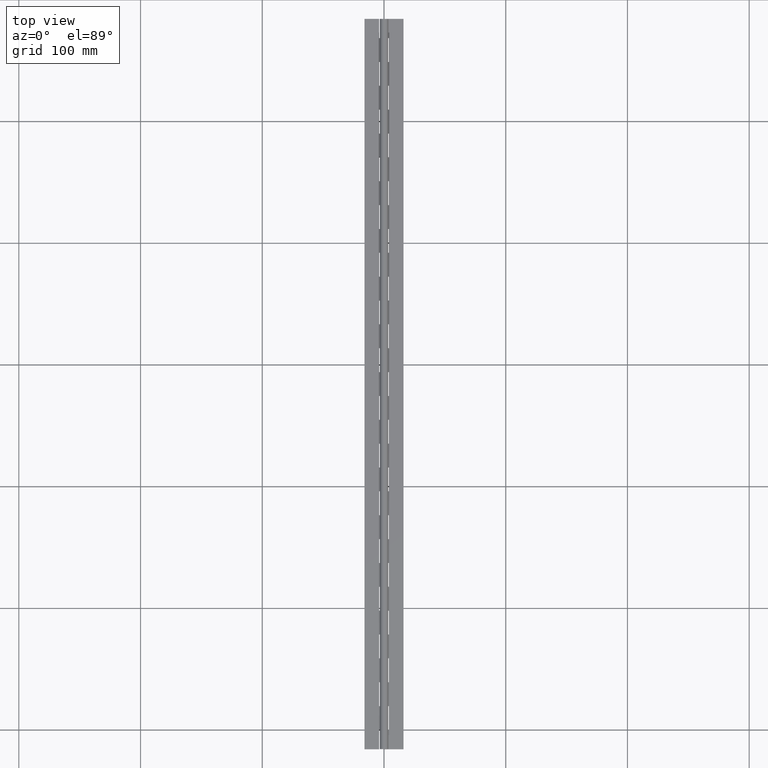
[diagram: clean part render]
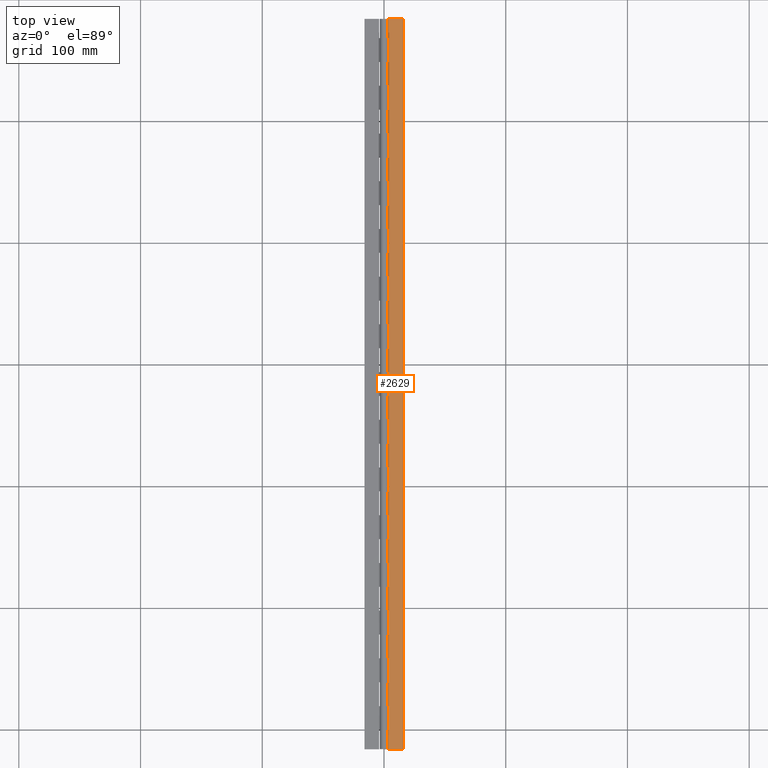
[diagram: same view with one face highlighted and labeled with its STEP entity id]
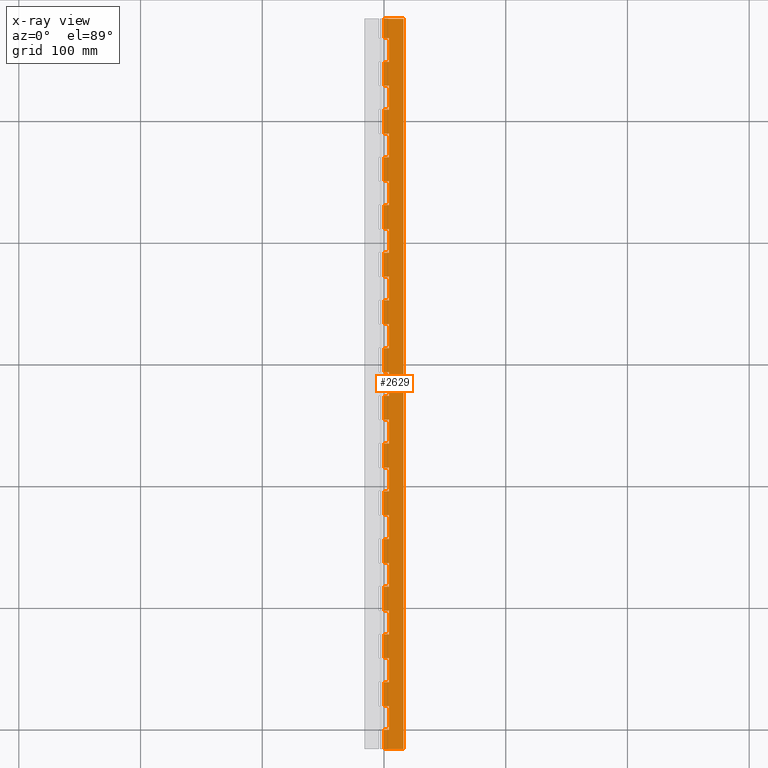
[diagram: x-ray of the same camera — body ghosted, the highlighted face saturated]
A machine part, top view. The second image highlights one B-rep face of the part: STEP entity #2629.
The next image is the same camera in x-ray: the body ghosted, the highlighted face saturated — about 0% of this face is hidden behind the body in this view.
In plain terms, the highlighted planar face has unit normal (-0, 0, -1).
Its self-contained STEP definition (entity closure, byte-faithful):
#19 = CARTESIAN_POINT ( 'NONE',  ( 0.0000000000000000000, 176.4000000000000100, -1.750002187502756900 ) ) ;
#25 = LINE ( 'NONE', #3932, #5538 ) ;
#30 = EDGE_CURVE ( 'NONE', #4172, #5078, #4350, .T. ) ;
#39 = EDGE_CURVE ( 'NONE', #4036, #899, #1742, .T. ) ;
#43 = LINE ( 'NONE', #5431, #5384 ) ;
#46 = VERTEX_POINT ( 'NONE', #3459 ) ;
#60 = VECTOR ( 'NONE', #3988, 1000.000000000000000 ) ;
#67 = CARTESIAN_POINT ( 'NONE',  ( 2.143125705451388300E-016, 58.79999999999996200, -1.750002187502756900 ) ) ;
#75 = VECTOR ( 'NONE', #1797, 1000.000000000000000 ) ;
#90 = EDGE_CURVE ( 'NONE', #940, #1159, #4514, .T. ) ;
#98 = LINE ( 'NONE', #1812, #3023 ) ;
#116 = EDGE_CURVE ( 'NONE', #4818, #308, #6615, .T. ) ;
#120 = LINE ( 'NONE', #2090, #5127 ) ;
#123 = ORIENTED_EDGE ( 'NONE', *, *, #6144, .T. ) ;
#189 = VECTOR ( 'NONE', #5840, 1000.000000000000000 ) ;
#203 = EDGE_CURVE ( 'NONE', #597, #2743, #1084, .T. ) ;
#204 = VECTOR ( 'NONE', #1274, 1000.000000000000000 ) ;
#231 = ORIENTED_EDGE ( 'NONE', *, *, #3465, .T. ) ;
#235 = CARTESIAN_POINT ( 'NONE',  ( 2.143125705451388300E-016, 274.4000000000000300, -1.750002187502756900 ) ) ;
#239 = PLANE ( 'NONE',  #5309 ) ;
#260 = DIRECTION ( 'NONE',  ( 1.000000000000000000, 0.0000000000000000000, -2.710505431213761100E-017 ) ) ;
#265 = CARTESIAN_POINT ( 'NONE',  ( 4.000000000000027500, 568.3999999999999800, -1.750002187502757200 ) ) ;
#306 = FACE_OUTER_BOUND ( 'NONE', #3059, .T. ) ;
#308 = VERTEX_POINT ( 'NONE', #2360 ) ;
#311 = CARTESIAN_POINT ( 'NONE',  ( 0.0000000000000000000, 254.8000000000000400, -1.750002187502756900 ) ) ;
#318 = CARTESIAN_POINT ( 'NONE',  ( 3.999999999999996400, 235.2000000000000200, -1.750002187502756900 ) ) ;
#324 = LINE ( 'NONE', #3268, #4290 ) ;
#342 = VECTOR ( 'NONE', #3825, 1000.000000000000000 ) ;
#343 = CARTESIAN_POINT ( 'NONE',  ( 0.0000000000000000000, 98.00000000000002800, -1.750002187502756900 ) ) ;
#364 = LINE ( 'NONE', #5406, #2971 ) ;
#375 = VECTOR ( 'NONE', #6560, 1000.000000000000000 ) ;
#393 = LINE ( 'NONE', #3815, #4202 ) ;
#404 = ORIENTED_EDGE ( 'NONE', *, *, #3473, .T. ) ;
#420 = CARTESIAN_POINT ( 'NONE',  ( 4.000000000000000000, 19.60000000000000100, -1.750002187502757200 ) ) ;
#422 = EDGE_CURVE ( 'NONE', #5719, #1348, #3457, .T. ) ;
#432 = VERTEX_POINT ( 'NONE', #2693 ) ;
#436 = LINE ( 'NONE', #6601, #1643 ) ;
#446 = CARTESIAN_POINT ( 'NONE',  ( 4.000000000000048800, 568.3999999999999800, -1.750002187502757200 ) ) ;
#488 = CARTESIAN_POINT ( 'NONE',  ( 2.143125705451388300E-016, 450.8000000000000700, -1.750002187502756900 ) ) ;
#495 = CARTESIAN_POINT ( 'NONE',  ( 0.0000000000000000000, 78.40000000000002000, -1.750002187502756900 ) ) ;
#496 = LINE ( 'NONE', #3349, #4636 ) ;
#502 = EDGE_CURVE ( 'NONE', #1567, #5906, #1570, .T. ) ;
#507 = CARTESIAN_POINT ( 'NONE',  ( 4.000000000000000000, 450.8000000000000700, -1.750002187502757200 ) ) ;
#580 = EDGE_CURVE ( 'NONE', #6350, #4994, #5226, .T. ) ;
#597 = VERTEX_POINT ( 'NONE', #2813 ) ;
#603 = LINE ( 'NONE', #3555, #1814 ) ;
#622 = VERTEX_POINT ( 'NONE', #2886 ) ;
#628 = VERTEX_POINT ( 'NONE', #4911 ) ;
#674 = LINE ( 'NONE', #3217, #6047 ) ;
#688 = VECTOR ( 'NONE', #4941, 1000.000000000000000 ) ;
#731 = ORIENTED_EDGE ( 'NONE', *, *, #116, .T. ) ;
#732 = DIRECTION ( 'NONE',  ( -2.710505431213761100E-017, 0.0000000000000000000, -1.000000000000000000 ) ) ;
#750 = EDGE_CURVE ( 'NONE', #5258, #4845, #2723, .T. ) ;
#764 = VERTEX_POINT ( 'NONE', #5344 ) ;
#766 = DIRECTION ( 'NONE',  ( -1.770125995894701000E-016, -1.000000000000000000, 4.797936125805254900E-033 ) ) ;
#797 = CARTESIAN_POINT ( 'NONE',  ( 16.00000000000000000, -15.80000000000000100, -1.750002187502757400 ) ) ;
#811 = EDGE_CURVE ( 'NONE', #4966, #2587, #6361, .T. ) ;
#826 = VECTOR ( 'NONE', #1616, 1000.000000000000000 ) ;
#844 = DIRECTION ( 'NONE',  ( 1.000000000000000000, 0.0000000000000000000, -2.710505431213761100E-017 ) ) ;
#853 = VECTOR ( 'NONE', #4692, 1000.000000000000000 ) ;
#899 = VERTEX_POINT ( 'NONE', #5252 ) ;
#902 = LINE ( 'NONE', #6325, #6603 ) ;
#903 = EDGE_CURVE ( 'NONE', #46, #6345, #5721, .T. ) ;
#934 = CARTESIAN_POINT ( 'NONE',  ( 0.0000000000000000000, 392.0000000000000600, -1.750002187502756900 ) ) ;
#940 = VERTEX_POINT ( 'NONE', #2115 ) ;
#942 = CARTESIAN_POINT ( 'NONE',  ( 2.143125705451388300E-016, 196.0000000000000600, -1.750002187502756900 ) ) ;
#957 = VECTOR ( 'NONE', #5422, 1000.000000000000000 ) ;
#978 = CARTESIAN_POINT ( 'NONE',  ( 2.143125705451388300E-016, 156.8000000000000400, -1.750002187502756900 ) ) ;
#990 = LINE ( 'NONE', #6336, #826 ) ;
#1005 = EDGE_CURVE ( 'NONE', #4075, #3665, #902, .T. ) ;
#1016 = LINE ( 'NONE', #6233, #853 ) ;
#1022 = VERTEX_POINT ( 'NONE', #1545 ) ;
#1043 = DIRECTION ( 'NONE',  ( -0.0000000000000000000, -1.000000000000000000, -0.0000000000000000000 ) ) ;
#1049 = CARTESIAN_POINT ( 'NONE',  ( 0.0000000000000000000, 156.8000000000000400, -1.750002187502756900 ) ) ;
#1062 = CARTESIAN_POINT ( 'NONE',  ( 0.0000000000000000000, 215.6000000000000200, -1.750002187502756900 ) ) ;
#1069 = LINE ( 'NONE', #311, #4888 ) ;
#1084 = LINE ( 'NONE', #6469, #3378 ) ;
#1094 = EDGE_CURVE ( 'NONE', #6435, #1581, #4575, .T. ) ;
#1140 = ORIENTED_EDGE ( 'NONE', *, *, #1618, .T. ) ;
#1142 = VECTOR ( 'NONE', #4582, 1000.000000000000000 ) ;
#1143 = LINE ( 'NONE', #2408, #3917 ) ;
#1151 = VERTEX_POINT ( 'NONE', #3095 ) ;
#1159 = VERTEX_POINT ( 'NONE', #2516 ) ;
#1171 = ORIENTED_EDGE ( 'NONE', *, *, #3502, .T. ) ;
#1218 = EDGE_CURVE ( 'NONE', #6477, #4261, #1143, .T. ) ;
#1224 = EDGE_CURVE ( 'NONE', #432, #6303, #120, .T. ) ;
#1236 = VECTOR ( 'NONE', #1791, 1000.000000000000000 ) ;
#1267 = CARTESIAN_POINT ( 'NONE',  ( 2.143134577426118000E-016, 584.2000000000000500, -1.750002187502757400 ) ) ;
#1274 = DIRECTION ( 'NONE',  ( 1.000000000000000000, 0.0000000000000000000, -2.710505431213761100E-017 ) ) ;
#1285 = CARTESIAN_POINT ( 'NONE',  ( 4.000000000000076400, 568.3999999999999800, -1.750002187502757200 ) ) ;
#1321 = ORIENTED_EDGE ( 'NONE', *, *, #4923, .T. ) ;
#1332 = CARTESIAN_POINT ( 'NONE',  ( 2.143125705451388300E-016, 294.0000000000000600, -1.750002187502756900 ) ) ;
#1348 = VERTEX_POINT ( 'NONE', #4292 ) ;
#1367 = EDGE_CURVE ( 'NONE', #4037, #6477, #4324, .T. ) ;
#1385 = EDGE_CURVE ( 'NONE', #4994, #2400, #25, .T. ) ;
#1406 = LINE ( 'NONE', #3352, #2800 ) ;
#1408 = CARTESIAN_POINT ( 'NONE',  ( 2.143125705451388300E-016, 98.00000000000002800, -1.750002187502756900 ) ) ;
#1423 = LINE ( 'NONE', #1918, #60 ) ;
#1424 = DIRECTION ( 'NONE',  ( -1.000000000000000000, 0.0000000000000000000, 2.710505431213761100E-017 ) ) ;
#1428 = DIRECTION ( 'NONE',  ( 1.000000000000000000, 0.0000000000000000000, -2.710505431213761100E-017 ) ) ;
#1434 = LINE ( 'NONE', #4394, #75 ) ;
#1435 = VERTEX_POINT ( 'NONE', #318 ) ;
#1460 = LINE ( 'NONE', #265, #2853 ) ;
#1479 = EDGE_CURVE ( 'NONE', #1505, #6530, #3516, .T. ) ;
#1486 = ORIENTED_EDGE ( 'NONE', *, *, #203, .T. ) ;
#1489 = CARTESIAN_POINT ( 'NONE',  ( 2.143134577426118000E-016, 19.59999999999995200, -1.750002187502757400 ) ) ;
#1502 = ORIENTED_EDGE ( 'NONE', *, *, #2839, .T. ) ;
#1505 = VERTEX_POINT ( 'NONE', #1950 ) ;
#1532 = EDGE_CURVE ( 'NONE', #2258, #622, #6242, .T. ) ;
#1545 = CARTESIAN_POINT ( 'NONE',  ( 4.000000000000000000, 254.8000000000000400, -1.750002187502757200 ) ) ;
#1548 = CARTESIAN_POINT ( 'NONE',  ( 4.000000000000056000, 568.3999999999999800, -1.750002187502757200 ) ) ;
#1561 = CARTESIAN_POINT ( 'NONE',  ( 0.0000000000000000000, 352.8000000000000700, -1.750002187502756900 ) ) ;
#1567 = VERTEX_POINT ( 'NONE', #5110 ) ;
#1570 = LINE ( 'NONE', #446, #4174 ) ;
#1581 = VERTEX_POINT ( 'NONE', #978 ) ;
#1586 = LINE ( 'NONE', #5583, #2654 ) ;
#1591 = VERTEX_POINT ( 'NONE', #4130 ) ;
#1609 = LINE ( 'NONE', #4645, #5593 ) ;
#1610 = VERTEX_POINT ( 'NONE', #2046 ) ;
#1616 = DIRECTION ( 'NONE',  ( -1.000000000000000000, 0.0000000000000000000, 2.710505431213761100E-017 ) ) ;
#1618 = EDGE_CURVE ( 'NONE', #4845, #4364, #1609, .T. ) ;
#1643 = VECTOR ( 'NONE', #1428, 1000.000000000000000 ) ;
#1652 = EDGE_CURVE ( 'NONE', #1022, #1435, #2836, .T. ) ;
#1670 = ORIENTED_EDGE ( 'NONE', *, *, #5864, .T. ) ;
#1699 = EDGE_CURVE ( 'NONE', #2572, #4172, #2678, .T. ) ;
#1715 = ORIENTED_EDGE ( 'NONE', *, *, #3427, .T. ) ;
#1727 = CARTESIAN_POINT ( 'NONE',  ( 3.999999999999996400, 470.4000000000000300, -1.750002187502756900 ) ) ;
#1742 = LINE ( 'NONE', #3972, #375 ) ;
#1753 = CARTESIAN_POINT ( 'NONE',  ( 4.000000000000000000, 215.6000000000000500, -1.750002187502757200 ) ) ;
#1754 = VECTOR ( 'NONE', #4866, 1000.000000000000000 ) ;
#1776 = DIRECTION ( 'NONE',  ( -1.000000000000000000, 0.0000000000000000000, 2.710505431213761100E-017 ) ) ;
#1785 = CARTESIAN_POINT ( 'NONE',  ( 4.000000000000096800, 568.3999999999999800, -1.750002187502757200 ) ) ;
#1791 = DIRECTION ( 'NONE',  ( 1.000000000000000000, 0.0000000000000000000, -2.710505431213761100E-017 ) ) ;
#1797 = DIRECTION ( 'NONE',  ( -0.0000000000000000000, -1.000000000000000000, -0.0000000000000000000 ) ) ;
#1808 = ORIENTED_EDGE ( 'NONE', *, *, #3168, .T. ) ;
#1812 = CARTESIAN_POINT ( 'NONE',  ( 4.000000000000021300, 568.3999999999999800, -1.750002187502757200 ) ) ;
#1814 = VECTOR ( 'NONE', #1999, 1000.000000000000000 ) ;
#1825 = ORIENTED_EDGE ( 'NONE', *, *, #3446, .T. ) ;
#1827 = ORIENTED_EDGE ( 'NONE', *, *, #5545, .T. ) ;
#1834 = DIRECTION ( 'NONE',  ( -1.000000000000000000, 0.0000000000000000000, 2.710505431213761100E-017 ) ) ;
#1843 = EDGE_CURVE ( 'NONE', #1581, #5657, #324, .T. ) ;
#1857 = CARTESIAN_POINT ( 'NONE',  ( 2.143125705451388300E-016, 333.2000000000000500, -1.750002187502756900 ) ) ;
#1899 = LINE ( 'NONE', #4415, #2979 ) ;
#1903 = ORIENTED_EDGE ( 'NONE', *, *, #1367, .T. ) ;
#1918 = CARTESIAN_POINT ( 'NONE',  ( 2.143134577426118000E-016, 568.3999999999999800, -1.750002187502757400 ) ) ;
#1950 = CARTESIAN_POINT ( 'NONE',  ( 2.143125705451388300E-016, 117.6000000000000400, -1.750002187502756900 ) ) ;
#1957 = CARTESIAN_POINT ( 'NONE',  ( 3.999999999999996400, 39.20000000000000300, -1.750002187502756900 ) ) ;
#1959 = CARTESIAN_POINT ( 'NONE',  ( 2.143125705451388300E-016, 372.4000000000000900, -1.750002187502756900 ) ) ;
#1984 = ORIENTED_EDGE ( 'NONE', *, *, #2317, .T. ) ;
#1987 = CARTESIAN_POINT ( 'NONE',  ( 4.000000000000062200, 568.3999999999999800, -1.750002187502757200 ) ) ;
#1999 = DIRECTION ( 'NONE',  ( -0.0000000000000000000, -1.000000000000000000, -0.0000000000000000000 ) ) ;
#2004 = VECTOR ( 'NONE', #3623, 1000.000000000000000 ) ;
#2016 = LINE ( 'NONE', #1285, #5848 ) ;
#2032 = CARTESIAN_POINT ( 'NONE',  ( 2.143134577426118000E-016, 568.3999999999999800, -1.750002187502757400 ) ) ;
#2046 = CARTESIAN_POINT ( 'NONE',  ( 3.999999999999996400, 0.0000000000000000000, -1.750002187502756900 ) ) ;
#2060 = ORIENTED_EDGE ( 'NONE', *, *, #580, .T. ) ;
#2064 = CARTESIAN_POINT ( 'NONE',  ( 4.000000000000000000, 58.80000000000000400, -1.750002187502757200 ) ) ;
#2069 = VERTEX_POINT ( 'NONE', #3973 ) ;
#2090 = CARTESIAN_POINT ( 'NONE',  ( 4.000000000000014200, 568.3999999999999800, -1.750002187502757200 ) ) ;
#2112 = EDGE_CURVE ( 'NONE', #3511, #4676, #4450, .T. ) ;
#2115 = CARTESIAN_POINT ( 'NONE',  ( 4.000000000000000000, 568.3999999999999800, -1.750002187502756900 ) ) ;
#2150 = CARTESIAN_POINT ( 'NONE',  ( 2.143134577426118000E-016, -15.80000000000000100, -1.750002187502757400 ) ) ;
#2151 = EDGE_CURVE ( 'NONE', #6384, #1505, #3077, .T. ) ;
#2152 = ORIENTED_EDGE ( 'NONE', *, *, #5219, .T. ) ;
#2194 = CARTESIAN_POINT ( 'NONE',  ( 4.000000000000069300, 568.3999999999999800, -1.750002187502757200 ) ) ;
#2258 = VERTEX_POINT ( 'NONE', #5853 ) ;
#2310 = DIRECTION ( 'NONE',  ( -0.0000000000000000000, -1.000000000000000000, -0.0000000000000000000 ) ) ;
#2317 = EDGE_CURVE ( 'NONE', #2565, #46, #3320, .T. ) ;
#2318 = ORIENTED_EDGE ( 'NONE', *, *, #3305, .T. ) ;
#2324 = DIRECTION ( 'NONE',  ( 1.000000000000000000, 0.0000000000000000000, -2.710505431213761100E-017 ) ) ;
#2330 = CARTESIAN_POINT ( 'NONE',  ( 0.0000000000000000000, 509.6000000000000800, -1.750002187502756900 ) ) ;
#2336 = CARTESIAN_POINT ( 'NONE',  ( 0.0000000000000000000, 58.79999999999996200, -1.750002187502756900 ) ) ;
#2339 = ORIENTED_EDGE ( 'NONE', *, *, #3822, .F. ) ;
#2341 = DIRECTION ( 'NONE',  ( 1.000000000000000000, 0.0000000000000000000, -2.710505431213761100E-017 ) ) ;
#2360 = CARTESIAN_POINT ( 'NONE',  ( 2.143125705451388300E-016, 313.6000000000000200, -1.750002187502756900 ) ) ;
#2364 = ORIENTED_EDGE ( 'NONE', *, *, #1385, .T. ) ;
#2381 = CARTESIAN_POINT ( 'NONE',  ( 2.143125705451388300E-016, 509.6000000000000800, -1.750002187502756900 ) ) ;
#2400 = VERTEX_POINT ( 'NONE', #6482 ) ;
#2408 = CARTESIAN_POINT ( 'NONE',  ( 0.0000000000000000000, 411.6000000000000800, -1.750002187502756900 ) ) ;
#2409 = CARTESIAN_POINT ( 'NONE',  ( 0.0000000000000000000, 470.4000000000000300, -1.750002187502756900 ) ) ;
#2443 = DIRECTION ( 'NONE',  ( 1.000000000000000000, 0.0000000000000000000, -2.710505431213761100E-017 ) ) ;
#2468 = VECTOR ( 'NONE', #6488, 1000.000000000000000 ) ;
#2507 = CARTESIAN_POINT ( 'NONE',  ( 2.143125705451388300E-016, 176.4000000000000100, -1.750002187502756900 ) ) ;
#2516 = CARTESIAN_POINT ( 'NONE',  ( 3.999999999999996400, 548.8000000000000700, -1.750002187502756900 ) ) ;
#2546 = ORIENTED_EDGE ( 'NONE', *, *, #6363, .T. ) ;
#2565 = VERTEX_POINT ( 'NONE', #3690 ) ;
#2572 = VERTEX_POINT ( 'NONE', #4222 ) ;
#2574 = DIRECTION ( 'NONE',  ( -0.0000000000000000000, -1.000000000000000000, -0.0000000000000000000 ) ) ;
#2576 = LINE ( 'NONE', #5149, #5162 ) ;
#2587 = VERTEX_POINT ( 'NONE', #2150 ) ;
#2613 = CARTESIAN_POINT ( 'NONE',  ( 4.000000000000000000, 411.6000000000000800, -1.750002187502757200 ) ) ;
#2627 = DIRECTION ( 'NONE',  ( -0.0000000000000000000, -1.000000000000000000, -0.0000000000000000000 ) ) ;
#2629 = ADVANCED_FACE ( 'NONE', ( #306 ), #239, .F. ) ;
#2634 = EDGE_CURVE ( 'NONE', #628, #4974, #5156, .T. ) ;
#2654 = VECTOR ( 'NONE', #1424, 1000.000000000000000 ) ;
#2666 = VECTOR ( 'NONE', #3016, 1000.000000000000000 ) ;
#2678 = LINE ( 'NONE', #3647, #6641 ) ;
#2679 = ORIENTED_EDGE ( 'NONE', *, *, #1479, .T. ) ;
#2682 = EDGE_CURVE ( 'NONE', #3665, #3599, #3622, .T. ) ;
#2693 = CARTESIAN_POINT ( 'NONE',  ( 4.000000000000000000, 490.0000000000000600, -1.750002187502757200 ) ) ;
#2694 = EDGE_CURVE ( 'NONE', #622, #4129, #4841, .T. ) ;
#2723 = LINE ( 'NONE', #6528, #4090 ) ;
#2725 = ORIENTED_EDGE ( 'NONE', *, *, #4934, .T. ) ;
#2736 = VERTEX_POINT ( 'NONE', #1332 ) ;
#2739 = DIRECTION ( 'NONE',  ( -1.770125995894701000E-016, -1.000000000000000000, 4.797936125805254900E-033 ) ) ;
#2743 = VERTEX_POINT ( 'NONE', #1857 ) ;
#2781 = CARTESIAN_POINT ( 'NONE',  ( 2.143134577426118000E-016, 568.3999999999999800, -1.750002187502757400 ) ) ;
#2800 = VECTOR ( 'NONE', #2341, 1000.000000000000000 ) ;
#2813 = CARTESIAN_POINT ( 'NONE',  ( 2.143125705451388300E-016, 352.8000000000000700, -1.750002187502756900 ) ) ;
#2821 = EDGE_CURVE ( 'NONE', #3050, #3233, #1423, .T. ) ;
#2822 = CARTESIAN_POINT ( 'NONE',  ( 0.0000000000000000000, 568.3999999999999800, -1.750002187502756900 ) ) ;
#2836 = LINE ( 'NONE', #1548, #5427 ) ;
#2837 = ORIENTED_EDGE ( 'NONE', *, *, #2821, .T. ) ;
#2839 = EDGE_CURVE ( 'NONE', #1610, #4966, #1586, .T. ) ;
#2841 = LINE ( 'NONE', #343, #5430 ) ;
#2851 = CARTESIAN_POINT ( 'NONE',  ( 4.000000000000000000, 137.2000000000000200, -1.750002187502757200 ) ) ;
#2853 = VECTOR ( 'NONE', #3883, 1000.000000000000000 ) ;
#2859 = CARTESIAN_POINT ( 'NONE',  ( 3.999999999999996400, 117.6000000000000100, -1.750002187502756900 ) ) ;
#2880 = VERTEX_POINT ( 'NONE', #3029 ) ;
#2886 = CARTESIAN_POINT ( 'NONE',  ( 2.143125705451388300E-016, 392.0000000000000600, -1.750002187502756900 ) ) ;
#2900 = DIRECTION ( 'NONE',  ( 1.000000000000000000, 0.0000000000000000000, -2.710505431213761100E-017 ) ) ;
#2915 = ORIENTED_EDGE ( 'NONE', *, *, #811, .T. ) ;
#2919 = VECTOR ( 'NONE', #3543, 1000.000000000000000 ) ;
#2937 = LINE ( 'NONE', #3147, #3976 ) ;
#2944 = CARTESIAN_POINT ( 'NONE',  ( 2.143125705451388300E-016, 431.2000000000001000, -1.750002187502756900 ) ) ;
#2966 = VECTOR ( 'NONE', #4759, 1000.000000000000000 ) ;
#2971 = VECTOR ( 'NONE', #5938, 1000.000000000000000 ) ;
#2979 = VECTOR ( 'NONE', #2324, 1000.000000000000000 ) ;
#2980 = VECTOR ( 'NONE', #2443, 1000.000000000000000 ) ;
#2981 = CARTESIAN_POINT ( 'NONE',  ( 3.999999999999996400, 274.4000000000000300, -1.750002187502756900 ) ) ;
#3007 = EDGE_CURVE ( 'NONE', #4129, #2880, #1899, .T. ) ;
#3016 = DIRECTION ( 'NONE',  ( -1.770125995894701000E-016, -1.000000000000000000, 4.797936125805254900E-033 ) ) ;
#3023 = VECTOR ( 'NONE', #766, 1000.000000000000000 ) ;
#3029 = CARTESIAN_POINT ( 'NONE',  ( 4.000000000000000000, 372.4000000000000900, -1.750002187502757200 ) ) ;
#3030 = CARTESIAN_POINT ( 'NONE',  ( 0.0000000000000000000, 117.6000000000000400, -1.750002187502756900 ) ) ;
#3047 = ORIENTED_EDGE ( 'NONE', *, *, #39, .T. ) ;
#3050 = VERTEX_POINT ( 'NONE', #4971 ) ;
#3059 = EDGE_LOOP ( 'NONE', ( #2152, #404, #3995, #6377, #1715, #3047, #5416, #2060, #2364, #3960, #4765, #3551, #2837, #1825, #2725, #3662, #1903, #5760, #1321, #5833, #6624, #5413, #4705, #2318, #1486, #5536, #1171, #731, #1808, #231, #3611, #5290, #5505, #6302, #5079, #4379, #1984, #3434, #3827, #3468, #1140, #123, #5255, #4511, #3591, #3785, #1827, #4603, #2679, #1670, #4723, #3515, #3146, #5588, #2546, #4922, #4175, #3276, #4849, #1502, #2915, #2339, #6699, #3224 ) ) ;
#3077 = LINE ( 'NONE', #3030, #2919 ) ;
#3095 = CARTESIAN_POINT ( 'NONE',  ( 4.000000000000000000, 333.2000000000000500, -1.750002187502757200 ) ) ;
#3108 = CARTESIAN_POINT ( 'NONE',  ( 0.0000000000000000000, 431.2000000000001000, -1.750002187502756900 ) ) ;
#3112 = DIRECTION ( 'NONE',  ( -0.0000000000000000000, -1.000000000000000000, -0.0000000000000000000 ) ) ;
#3129 = VECTOR ( 'NONE', #4314, 1000.000000000000000 ) ;
#3133 = CARTESIAN_POINT ( 'NONE',  ( 2.143134577426118000E-016, 568.3999999999999800, -1.750002187502757400 ) ) ;
#3136 = LINE ( 'NONE', #5919, #5725 ) ;
#3146 = ORIENTED_EDGE ( 'NONE', *, *, #1005, .T. ) ;
#3147 = CARTESIAN_POINT ( 'NONE',  ( 2.143134577426118000E-016, 568.3999999999999800, -1.750002187502757400 ) ) ;
#3168 = EDGE_CURVE ( 'NONE', #308, #2736, #603, .T. ) ;
#3214 = LINE ( 'NONE', #3108, #4897 ) ;
#3217 = CARTESIAN_POINT ( 'NONE',  ( 4.000000000000007100, 568.3999999999999800, -1.750002187502757200 ) ) ;
#3224 = ORIENTED_EDGE ( 'NONE', *, *, #2634, .F. ) ;
#3233 = VERTEX_POINT ( 'NONE', #488 ) ;
#3249 = DIRECTION ( 'NONE',  ( -0.0000000000000000000, -1.000000000000000000, -0.0000000000000000000 ) ) ;
#3260 = CARTESIAN_POINT ( 'NONE',  ( 2.143134577426118000E-016, 568.3999999999999800, -1.750002187502757400 ) ) ;
#3268 = CARTESIAN_POINT ( 'NONE',  ( 2.143134577426118000E-016, 568.3999999999999800, -1.750002187502757400 ) ) ;
#3276 = ORIENTED_EDGE ( 'NONE', *, *, #30, .T. ) ;
#3286 = LINE ( 'NONE', #5340, #3129 ) ;
#3305 = EDGE_CURVE ( 'NONE', #5067, #597, #3938, .T. ) ;
#3320 = LINE ( 'NONE', #2781, #1754 ) ;
#3349 = CARTESIAN_POINT ( 'NONE',  ( 0.0000000000000000000, 235.2000000000000200, -1.750002187502756900 ) ) ;
#3352 = CARTESIAN_POINT ( 'NONE',  ( 0.0000000000000000000, 568.3999999999999800, -1.750002187502756900 ) ) ;
#3354 = CARTESIAN_POINT ( 'NONE',  ( 4.000000000000090600, 568.3999999999999800, -1.750002187502757200 ) ) ;
#3378 = VECTOR ( 'NONE', #2310, 1000.000000000000000 ) ;
#3391 = EDGE_CURVE ( 'NONE', #899, #6350, #674, .T. ) ;
#3425 = EDGE_CURVE ( 'NONE', #4806, #2572, #3136, .T. ) ;
#3427 = EDGE_CURVE ( 'NONE', #1591, #4036, #364, .T. ) ;
#3431 = CARTESIAN_POINT ( 'NONE',  ( 0.0000000000000000000, 313.6000000000000200, -1.750002187502756900 ) ) ;
#3434 = ORIENTED_EDGE ( 'NONE', *, *, #903, .T. ) ;
#3446 = EDGE_CURVE ( 'NONE', #3233, #3613, #4340, .T. ) ;
#3457 = LINE ( 'NONE', #3133, #6048 ) ;
#3459 = CARTESIAN_POINT ( 'NONE',  ( 2.143125705451388300E-016, 215.6000000000000200, -1.750002187502756900 ) ) ;
#3465 = EDGE_CURVE ( 'NONE', #2736, #1567, #43, .T. ) ;
#3468 = ORIENTED_EDGE ( 'NONE', *, *, #750, .T. ) ;
#3471 = VECTOR ( 'NONE', #260, 1000.000000000000000 ) ;
#3473 = EDGE_CURVE ( 'NONE', #5002, #940, #1406, .T. ) ;
#3502 = EDGE_CURVE ( 'NONE', #1151, #4818, #5225, .T. ) ;
#3511 = VERTEX_POINT ( 'NONE', #4944 ) ;
#3515 = ORIENTED_EDGE ( 'NONE', *, *, #6064, .T. ) ;
#3516 = LINE ( 'NONE', #2032, #6110 ) ;
#3543 = DIRECTION ( 'NONE',  ( -1.000000000000000000, 0.0000000000000000000, 2.710505431213761100E-017 ) ) ;
#3551 = ORIENTED_EDGE ( 'NONE', *, *, #4683, .T. ) ;
#3555 = CARTESIAN_POINT ( 'NONE',  ( 2.143134577426118000E-016, 568.3999999999999800, -1.750002187502757400 ) ) ;
#3577 = EDGE_CURVE ( 'NONE', #2069, #4037, #3214, .T. ) ;
#3591 = ORIENTED_EDGE ( 'NONE', *, *, #1843, .T. ) ;
#3599 = VERTEX_POINT ( 'NONE', #2064 ) ;
#3604 = VECTOR ( 'NONE', #1043, 1000.000000000000000 ) ;
#3611 = ORIENTED_EDGE ( 'NONE', *, *, #502, .T. ) ;
#3613 = VERTEX_POINT ( 'NONE', #507 ) ;
#3622 = LINE ( 'NONE', #2336, #3471 ) ;
#3623 = DIRECTION ( 'NONE',  ( -1.000000000000000000, 0.0000000000000000000, 2.710505431213761100E-017 ) ) ;
#3647 = CARTESIAN_POINT ( 'NONE',  ( 2.143134577426118000E-016, 568.3999999999999800, -1.750002187502757400 ) ) ;
#3662 = ORIENTED_EDGE ( 'NONE', *, *, #3577, .T. ) ;
#3665 = VERTEX_POINT ( 'NONE', #67 ) ;
#3690 = CARTESIAN_POINT ( 'NONE',  ( 2.143125705451388300E-016, 235.2000000000000200, -1.750002187502756900 ) ) ;
#3758 = EDGE_CURVE ( 'NONE', #1159, #1591, #990, .T. ) ;
#3785 = ORIENTED_EDGE ( 'NONE', *, *, #4102, .T. ) ;
#3791 = EDGE_CURVE ( 'NONE', #764, #6435, #6200, .T. ) ;
#3803 = DIRECTION ( 'NONE',  ( -1.000000000000000000, 0.0000000000000000000, 2.710505431213761100E-017 ) ) ;
#3815 = CARTESIAN_POINT ( 'NONE',  ( 0.0000000000000000000, 274.4000000000000300, -1.750002187502756900 ) ) ;
#3822 = EDGE_CURVE ( 'NONE', #5810, #2587, #3286, .T. ) ;
#3825 = DIRECTION ( 'NONE',  ( -1.000000000000000000, 0.0000000000000000000, 2.710505431213761100E-017 ) ) ;
#3827 = ORIENTED_EDGE ( 'NONE', *, *, #4151, .T. ) ;
#3846 = VECTOR ( 'NONE', #1834, 1000.000000000000000 ) ;
#3883 = DIRECTION ( 'NONE',  ( -1.770125995894701000E-016, -1.000000000000000000, 4.797936125805254900E-033 ) ) ;
#3884 = DIRECTION ( 'NONE',  ( 1.000000000000000000, 0.0000000000000000000, -2.710505431213761100E-017 ) ) ;
#3904 = DIRECTION ( 'NONE',  ( -1.770125995894701000E-016, -1.000000000000000000, 4.797936125805254900E-033 ) ) ;
#3917 = VECTOR ( 'NONE', #2900, 1000.000000000000000 ) ;
#3927 = DIRECTION ( 'NONE',  ( 1.000000000000000000, 0.0000000000000000000, -2.710505431213761100E-017 ) ) ;
#3932 = CARTESIAN_POINT ( 'NONE',  ( 2.143134577426118000E-016, 568.3999999999999800, -1.750002187502757400 ) ) ;
#3934 = EDGE_CURVE ( 'NONE', #2400, #432, #4006, .T. ) ;
#3938 = LINE ( 'NONE', #1561, #6533 ) ;
#3960 = ORIENTED_EDGE ( 'NONE', *, *, #3934, .T. ) ;
#3967 = CARTESIAN_POINT ( 'NONE',  ( 2.143125705451388300E-016, 411.6000000000000800, -1.750002187502756900 ) ) ;
#3972 = CARTESIAN_POINT ( 'NONE',  ( 0.0000000000000000000, 529.2000000000000500, -1.750002187502756900 ) ) ;
#3973 = CARTESIAN_POINT ( 'NONE',  ( 3.999999999999996400, 431.2000000000001000, -1.750002187502756900 ) ) ;
#3976 = VECTOR ( 'NONE', #6244, 1000.000000000000000 ) ;
#3988 = DIRECTION ( 'NONE',  ( -0.0000000000000000000, -1.000000000000000000, -0.0000000000000000000 ) ) ;
#3995 = ORIENTED_EDGE ( 'NONE', *, *, #90, .T. ) ;
#4001 = EDGE_CURVE ( 'NONE', #1348, #1022, #1069, .T. ) ;
#4006 = LINE ( 'NONE', #5429, #1236 ) ;
#4011 = VECTOR ( 'NONE', #5471, 1000.000000000000000 ) ;
#4019 = CARTESIAN_POINT ( 'NONE',  ( 3.999999999999996400, 352.8000000000000700, -1.750002187502756900 ) ) ;
#4021 = VECTOR ( 'NONE', #4456, 1000.000000000000000 ) ;
#4023 = DIRECTION ( 'NONE',  ( -1.000000000000000000, 0.0000000000000000000, 2.710505431213761100E-017 ) ) ;
#4036 = VERTEX_POINT ( 'NONE', #6040 ) ;
#4037 = VERTEX_POINT ( 'NONE', #2944 ) ;
#4038 = VECTOR ( 'NONE', #5943, 1000.000000000000000 ) ;
#4060 = DIRECTION ( 'NONE',  ( -1.000000000000000000, 0.0000000000000000000, 2.710505431213761100E-017 ) ) ;
#4064 = CARTESIAN_POINT ( 'NONE',  ( 3.999999999999996400, 313.6000000000000200, -1.750002187502756900 ) ) ;
#4075 = VERTEX_POINT ( 'NONE', #5032 ) ;
#4090 = VECTOR ( 'NONE', #3803, 1000.000000000000000 ) ;
#4093 = DIRECTION ( 'NONE',  ( -1.770125995894701000E-016, -1.000000000000000000, 4.797936125805254900E-033 ) ) ;
#4102 = EDGE_CURVE ( 'NONE', #5657, #4919, #436, .T. ) ;
#4127 = LINE ( 'NONE', #19, #4288 ) ;
#4129 = VERTEX_POINT ( 'NONE', #1959 ) ;
#4130 = CARTESIAN_POINT ( 'NONE',  ( 2.143125705451388300E-016, 548.8000000000000700, -1.750002187502756900 ) ) ;
#4151 = EDGE_CURVE ( 'NONE', #6345, #5258, #6676, .T. ) ;
#4172 = VERTEX_POINT ( 'NONE', #1489 ) ;
#4174 = VECTOR ( 'NONE', #4093, 1000.000000000000000 ) ;
#4175 = ORIENTED_EDGE ( 'NONE', *, *, #1699, .T. ) ;
#4202 = VECTOR ( 'NONE', #5380, 1000.000000000000000 ) ;
#4222 = CARTESIAN_POINT ( 'NONE',  ( 2.143125705451388300E-016, 39.20000000000001000, -1.750002187502756900 ) ) ;
#4261 = VERTEX_POINT ( 'NONE', #2613 ) ;
#4288 = VECTOR ( 'NONE', #5227, 1000.000000000000000 ) ;
#4290 = VECTOR ( 'NONE', #4302, 1000.000000000000000 ) ;
#4292 = CARTESIAN_POINT ( 'NONE',  ( 2.143125705451388300E-016, 254.8000000000000400, -1.750002187502756900 ) ) ;
#4302 = DIRECTION ( 'NONE',  ( -0.0000000000000000000, -1.000000000000000000, -0.0000000000000000000 ) ) ;
#4314 = DIRECTION ( 'NONE',  ( -1.000000000000000000, 0.0000000000000000000, 0.0000000000000000000 ) ) ;
#4324 = LINE ( 'NONE', #3260, #189 ) ;
#4328 = CARTESIAN_POINT ( 'NONE',  ( 2.143125705451388300E-016, 137.1999999999999900, -1.750002187502756900 ) ) ;
#4340 = LINE ( 'NONE', #4389, #204 ) ;
#4350 = LINE ( 'NONE', #4523, #2980 ) ;
#4364 = VERTEX_POINT ( 'NONE', #2507 ) ;
#4379 = ORIENTED_EDGE ( 'NONE', *, *, #4660, .T. ) ;
#4386 = DIRECTION ( 'NONE',  ( -1.000000000000000000, 0.0000000000000000000, 2.710505431213761100E-017 ) ) ;
#4389 = CARTESIAN_POINT ( 'NONE',  ( 0.0000000000000000000, 450.8000000000000700, -1.750002187502756900 ) ) ;
#4394 = CARTESIAN_POINT ( 'NONE',  ( 16.00000000000000000, 568.3999999999999800, -1.750002187502757400 ) ) ;
#4400 = DIRECTION ( 'NONE',  ( -1.770125995894701000E-016, -1.000000000000000000, 4.797936125805254900E-033 ) ) ;
#4415 = CARTESIAN_POINT ( 'NONE',  ( 0.0000000000000000000, 372.4000000000000900, -1.750002187502756900 ) ) ;
#4428 = CARTESIAN_POINT ( 'NONE',  ( 2.143134577426118000E-016, 568.3999999999999800, -1.750002187502757400 ) ) ;
#4450 = LINE ( 'NONE', #6104, #2666 ) ;
#4456 = DIRECTION ( 'NONE',  ( -1.770125995894701000E-016, -1.000000000000000000, 4.797936125805254900E-033 ) ) ;
#4471 = CARTESIAN_POINT ( 'NONE',  ( 3.999999999999996400, 156.8000000000000100, -1.750002187502756900 ) ) ;
#4511 = ORIENTED_EDGE ( 'NONE', *, *, #1094, .T. ) ;
#4514 = LINE ( 'NONE', #4958, #4021 ) ;
#4523 = CARTESIAN_POINT ( 'NONE',  ( 0.0000000000000000000, 19.59999999999995200, -1.750002187502756900 ) ) ;
#4575 = LINE ( 'NONE', #1049, #5796 ) ;
#4582 = DIRECTION ( 'NONE',  ( -1.770125995894701000E-016, -1.000000000000000000, 4.797936125805254900E-033 ) ) ;
#4603 = ORIENTED_EDGE ( 'NONE', *, *, #2151, .T. ) ;
#4636 = VECTOR ( 'NONE', #5396, 1000.000000000000000 ) ;
#4645 = CARTESIAN_POINT ( 'NONE',  ( 2.143134577426118000E-016, 568.3999999999999800, -1.750002187502757400 ) ) ;
#4660 = EDGE_CURVE ( 'NONE', #1435, #2565, #496, .T. ) ;
#4676 = VERTEX_POINT ( 'NONE', #4894 ) ;
#4683 = EDGE_CURVE ( 'NONE', #6303, #3050, #5857, .T. ) ;
#4692 = DIRECTION ( 'NONE',  ( -1.770125995894701000E-016, -1.000000000000000000, 4.797936125805254900E-033 ) ) ;
#4705 = ORIENTED_EDGE ( 'NONE', *, *, #6673, .T. ) ;
#4723 = ORIENTED_EDGE ( 'NONE', *, *, #2112, .T. ) ;
#4759 = DIRECTION ( 'NONE',  ( 1.000000000000000000, 0.0000000000000000000, -2.710505431213761100E-017 ) ) ;
#4765 = ORIENTED_EDGE ( 'NONE', *, *, #1224, .T. ) ;
#4777 = LINE ( 'NONE', #495, #2004 ) ;
#4806 = VERTEX_POINT ( 'NONE', #1957 ) ;
#4818 = VERTEX_POINT ( 'NONE', #4064 ) ;
#4819 = VECTOR ( 'NONE', #2739, 1000.000000000000000 ) ;
#4841 = LINE ( 'NONE', #4428, #688 ) ;
#4845 = VERTEX_POINT ( 'NONE', #942 ) ;
#4849 = ORIENTED_EDGE ( 'NONE', *, *, #5526, .T. ) ;
#4861 = VECTOR ( 'NONE', #4060, 1000.000000000000000 ) ;
#4866 = DIRECTION ( 'NONE',  ( -0.0000000000000000000, -1.000000000000000000, -0.0000000000000000000 ) ) ;
#4888 = VECTOR ( 'NONE', #3927, 1000.000000000000000 ) ;
#4894 = CARTESIAN_POINT ( 'NONE',  ( 3.999999999999996400, 78.40000000000000600, -1.750002187502756900 ) ) ;
#4897 = VECTOR ( 'NONE', #4023, 1000.000000000000000 ) ;
#4911 = CARTESIAN_POINT ( 'NONE',  ( 2.143134577426118000E-016, 584.2000000000000500, -1.750002187502757400 ) ) ;
#4919 = VERTEX_POINT ( 'NONE', #2851 ) ;
#4922 = ORIENTED_EDGE ( 'NONE', *, *, #3425, .T. ) ;
#4923 = EDGE_CURVE ( 'NONE', #4261, #2258, #1460, .T. ) ;
#4934 = EDGE_CURVE ( 'NONE', #3613, #2069, #98, .T. ) ;
#4941 = DIRECTION ( 'NONE',  ( -0.0000000000000000000, -1.000000000000000000, -0.0000000000000000000 ) ) ;
#4944 = CARTESIAN_POINT ( 'NONE',  ( 4.000000000000000000, 98.00000000000001400, -1.750002187502757200 ) ) ;
#4958 = CARTESIAN_POINT ( 'NONE',  ( 4.000000000000000000, 568.3999999999999800, -1.750002187502756900 ) ) ;
#4966 = VERTEX_POINT ( 'NONE', #6003 ) ;
#4971 = CARTESIAN_POINT ( 'NONE',  ( 2.143125705451388300E-016, 470.4000000000000300, -1.750002187502756900 ) ) ;
#4974 = VERTEX_POINT ( 'NONE', #6539 ) ;
#4985 = CARTESIAN_POINT ( 'NONE',  ( 2.143125705451388300E-016, 568.3999999999999800, -1.750002187502756900 ) ) ;
#4994 = VERTEX_POINT ( 'NONE', #2381 ) ;
#5002 = VERTEX_POINT ( 'NONE', #4985 ) ;
#5032 = CARTESIAN_POINT ( 'NONE',  ( 2.143125705451388300E-016, 78.40000000000002000, -1.750002187502756900 ) ) ;
#5067 = VERTEX_POINT ( 'NONE', #4019 ) ;
#5078 = VERTEX_POINT ( 'NONE', #420 ) ;
#5079 = ORIENTED_EDGE ( 'NONE', *, *, #1652, .T. ) ;
#5110 = CARTESIAN_POINT ( 'NONE',  ( 4.000000000000000000, 294.0000000000000600, -1.750002187502757200 ) ) ;
#5122 = DIRECTION ( 'NONE',  ( 1.000000000000000000, 0.0000000000000000000, -2.710505431213761100E-017 ) ) ;
#5127 = VECTOR ( 'NONE', #3904, 1000.000000000000000 ) ;
#5149 = CARTESIAN_POINT ( 'NONE',  ( 0.0000000000000000000, 333.2000000000000500, -1.750002187502756900 ) ) ;
#5156 = LINE ( 'NONE', #1267, #6380 ) ;
#5162 = VECTOR ( 'NONE', #5122, 1000.000000000000000 ) ;
#5186 = DIRECTION ( 'NONE',  ( -1.770125995894701000E-016, -1.000000000000000000, 4.797936125805254900E-033 ) ) ;
#5211 = CARTESIAN_POINT ( 'NONE',  ( 3.999999999999996400, 196.0000000000000300, -1.750002187502756900 ) ) ;
#5219 = EDGE_CURVE ( 'NONE', #628, #5002, #2937, .T. ) ;
#5225 = LINE ( 'NONE', #5448, #4011 ) ;
#5226 = LINE ( 'NONE', #2330, #2468 ) ;
#5227 = DIRECTION ( 'NONE',  ( 1.000000000000000000, 0.0000000000000000000, -2.710505431213761100E-017 ) ) ;
#5252 = CARTESIAN_POINT ( 'NONE',  ( 4.000000000000000000, 529.2000000000000500, -1.750002187502757200 ) ) ;
#5255 = ORIENTED_EDGE ( 'NONE', *, *, #3791, .T. ) ;
#5258 = VERTEX_POINT ( 'NONE', #5211 ) ;
#5290 = ORIENTED_EDGE ( 'NONE', *, *, #6344, .T. ) ;
#5309 = AXIS2_PLACEMENT_3D ( 'NONE', #2822, #732, #4386 ) ;
#5340 = CARTESIAN_POINT ( 'NONE',  ( 16.00000000000000000, -15.80000000000000100, -1.750002187502757400 ) ) ;
#5344 = CARTESIAN_POINT ( 'NONE',  ( 4.000000000000000000, 176.4000000000000300, -1.750002187502757200 ) ) ;
#5380 = DIRECTION ( 'NONE',  ( -1.000000000000000000, 0.0000000000000000000, 2.710505431213761100E-017 ) ) ;
#5384 = VECTOR ( 'NONE', #3884, 1000.000000000000000 ) ;
#5396 = DIRECTION ( 'NONE',  ( -1.000000000000000000, 0.0000000000000000000, 2.710505431213761100E-017 ) ) ;
#5406 = CARTESIAN_POINT ( 'NONE',  ( 2.143134577426118000E-016, 568.3999999999999800, -1.750002187502757400 ) ) ;
#5413 = ORIENTED_EDGE ( 'NONE', *, *, #3007, .T. ) ;
#5414 = LINE ( 'NONE', #3354, #4038 ) ;
#5416 = ORIENTED_EDGE ( 'NONE', *, *, #3391, .T. ) ;
#5422 = DIRECTION ( 'NONE',  ( -1.770125995894701000E-016, -1.000000000000000000, 4.797936125805254900E-033 ) ) ;
#5427 = VECTOR ( 'NONE', #5186, 1000.000000000000000 ) ;
#5429 = CARTESIAN_POINT ( 'NONE',  ( 0.0000000000000000000, 490.0000000000000600, -1.750002187502756900 ) ) ;
#5430 = VECTOR ( 'NONE', #844, 1000.000000000000000 ) ;
#5431 = CARTESIAN_POINT ( 'NONE',  ( 0.0000000000000000000, 294.0000000000000600, -1.750002187502756900 ) ) ;
#5448 = CARTESIAN_POINT ( 'NONE',  ( 4.000000000000041700, 568.3999999999999800, -1.750002187502757200 ) ) ;
#5471 = DIRECTION ( 'NONE',  ( -1.770125995894701000E-016, -1.000000000000000000, 4.797936125805254900E-033 ) ) ;
#5505 = ORIENTED_EDGE ( 'NONE', *, *, #422, .T. ) ;
#5526 = EDGE_CURVE ( 'NONE', #5078, #1610, #6165, .T. ) ;
#5536 = ORIENTED_EDGE ( 'NONE', *, *, #6639, .T. ) ;
#5538 = VECTOR ( 'NONE', #6020, 1000.000000000000000 ) ;
#5545 = EDGE_CURVE ( 'NONE', #4919, #6384, #2016, .T. ) ;
#5583 = CARTESIAN_POINT ( 'NONE',  ( 0.0000000000000000000, 0.0000000000000000000, -1.750002187502756900 ) ) ;
#5588 = ORIENTED_EDGE ( 'NONE', *, *, #2682, .T. ) ;
#5593 = VECTOR ( 'NONE', #3112, 1000.000000000000000 ) ;
#5657 = VERTEX_POINT ( 'NONE', #4328 ) ;
#5697 = DIRECTION ( 'NONE',  ( -1.000000000000000000, 0.0000000000000000000, 2.710505431213761100E-017 ) ) ;
#5719 = VERTEX_POINT ( 'NONE', #235 ) ;
#5721 = LINE ( 'NONE', #1062, #2966 ) ;
#5725 = VECTOR ( 'NONE', #1776, 1000.000000000000000 ) ;
#5732 = DIRECTION ( 'NONE',  ( -1.000000000000000000, 0.0000000000000000000, 2.710505431213761100E-017 ) ) ;
#5760 = ORIENTED_EDGE ( 'NONE', *, *, #1218, .T. ) ;
#5796 = VECTOR ( 'NONE', #5697, 1000.000000000000000 ) ;
#5801 = DIRECTION ( 'NONE',  ( -0.0000000000000000000, -1.000000000000000000, -0.0000000000000000000 ) ) ;
#5810 = VERTEX_POINT ( 'NONE', #797 ) ;
#5833 = ORIENTED_EDGE ( 'NONE', *, *, #1532, .T. ) ;
#5840 = DIRECTION ( 'NONE',  ( -0.0000000000000000000, -1.000000000000000000, -0.0000000000000000000 ) ) ;
#5848 = VECTOR ( 'NONE', #4400, 1000.000000000000000 ) ;
#5853 = CARTESIAN_POINT ( 'NONE',  ( 3.999999999999996400, 392.0000000000000600, -1.750002187502756900 ) ) ;
#5857 = LINE ( 'NONE', #2409, #342 ) ;
#5864 = EDGE_CURVE ( 'NONE', #6530, #3511, #2841, .T. ) ;
#5906 = VERTEX_POINT ( 'NONE', #2981 ) ;
#5919 = CARTESIAN_POINT ( 'NONE',  ( 0.0000000000000000000, 39.20000000000001000, -1.750002187502756900 ) ) ;
#5922 = CARTESIAN_POINT ( 'NONE',  ( 3.999999999999996400, 509.6000000000000800, -1.750002187502756900 ) ) ;
#5938 = DIRECTION ( 'NONE',  ( -0.0000000000000000000, -1.000000000000000000, -0.0000000000000000000 ) ) ;
#5943 = DIRECTION ( 'NONE',  ( -1.770125995894701000E-016, -1.000000000000000000, 4.797936125805254900E-033 ) ) ;
#6003 = CARTESIAN_POINT ( 'NONE',  ( 0.0000000000000000000, 0.0000000000000000000, -1.750002187502757400 ) ) ;
#6020 = DIRECTION ( 'NONE',  ( -0.0000000000000000000, -1.000000000000000000, -0.0000000000000000000 ) ) ;
#6040 = CARTESIAN_POINT ( 'NONE',  ( 2.143125705451388300E-016, 529.2000000000000500, -1.750002187502756900 ) ) ;
#6047 = VECTOR ( 'NONE', #6318, 1000.000000000000000 ) ;
#6048 = VECTOR ( 'NONE', #3249, 1000.000000000000000 ) ;
#6064 = EDGE_CURVE ( 'NONE', #4676, #4075, #4777, .T. ) ;
#6104 = CARTESIAN_POINT ( 'NONE',  ( 4.000000000000083500, 568.3999999999999800, -1.750002187502757200 ) ) ;
#6110 = VECTOR ( 'NONE', #2574, 1000.000000000000000 ) ;
#6144 = EDGE_CURVE ( 'NONE', #4364, #764, #4127, .T. ) ;
#6165 = LINE ( 'NONE', #1785, #957 ) ;
#6200 = LINE ( 'NONE', #2194, #4819 ) ;
#6233 = CARTESIAN_POINT ( 'NONE',  ( 4.000000000000034600, 568.3999999999999800, -1.750002187502757200 ) ) ;
#6242 = LINE ( 'NONE', #934, #4861 ) ;
#6244 = DIRECTION ( 'NONE',  ( -0.0000000000000000000, -1.000000000000000000, -0.0000000000000000000 ) ) ;
#6254 = CARTESIAN_POINT ( 'NONE',  ( 2.143134577426118000E-016, 568.3999999999999800, -1.750002187502757400 ) ) ;
#6302 = ORIENTED_EDGE ( 'NONE', *, *, #4001, .T. ) ;
#6303 = VERTEX_POINT ( 'NONE', #1727 ) ;
#6318 = DIRECTION ( 'NONE',  ( -1.770125995894701000E-016, -1.000000000000000000, 4.797936125805254900E-033 ) ) ;
#6325 = CARTESIAN_POINT ( 'NONE',  ( 2.143134577426118000E-016, 568.3999999999999800, -1.750002187502757400 ) ) ;
#6336 = CARTESIAN_POINT ( 'NONE',  ( 0.0000000000000000000, 548.8000000000000700, -1.750002187502756900 ) ) ;
#6344 = EDGE_CURVE ( 'NONE', #5906, #5719, #393, .T. ) ;
#6345 = VERTEX_POINT ( 'NONE', #1753 ) ;
#6350 = VERTEX_POINT ( 'NONE', #5922 ) ;
#6361 = LINE ( 'NONE', #6254, #3604 ) ;
#6363 = EDGE_CURVE ( 'NONE', #3599, #4806, #5414, .T. ) ;
#6366 = EDGE_CURVE ( 'NONE', #4974, #5810, #1434, .T. ) ;
#6377 = ORIENTED_EDGE ( 'NONE', *, *, #3758, .T. ) ;
#6380 = VECTOR ( 'NONE', #6438, 1000.000000000000000 ) ;
#6384 = VERTEX_POINT ( 'NONE', #2859 ) ;
#6435 = VERTEX_POINT ( 'NONE', #4471 ) ;
#6438 = DIRECTION ( 'NONE',  ( 1.000000000000000000, 0.0000000000000000000, 0.0000000000000000000 ) ) ;
#6469 = CARTESIAN_POINT ( 'NONE',  ( 2.143134577426118000E-016, 568.3999999999999800, -1.750002187502757400 ) ) ;
#6477 = VERTEX_POINT ( 'NONE', #3967 ) ;
#6482 = CARTESIAN_POINT ( 'NONE',  ( 2.143125705451388300E-016, 490.0000000000000600, -1.750002187502756900 ) ) ;
#6488 = DIRECTION ( 'NONE',  ( -1.000000000000000000, 0.0000000000000000000, 2.710505431213761100E-017 ) ) ;
#6528 = CARTESIAN_POINT ( 'NONE',  ( 0.0000000000000000000, 196.0000000000000600, -1.750002187502756900 ) ) ;
#6530 = VERTEX_POINT ( 'NONE', #1408 ) ;
#6533 = VECTOR ( 'NONE', #5732, 1000.000000000000000 ) ;
#6539 = CARTESIAN_POINT ( 'NONE',  ( 16.00000000000000000, 584.2000000000000500, -1.750002187502757400 ) ) ;
#6560 = DIRECTION ( 'NONE',  ( 1.000000000000000000, 0.0000000000000000000, -2.710505431213761100E-017 ) ) ;
#6601 = CARTESIAN_POINT ( 'NONE',  ( 0.0000000000000000000, 137.1999999999999900, -1.750002187502756900 ) ) ;
#6603 = VECTOR ( 'NONE', #5801, 1000.000000000000000 ) ;
#6615 = LINE ( 'NONE', #3431, #3846 ) ;
#6624 = ORIENTED_EDGE ( 'NONE', *, *, #2694, .T. ) ;
#6639 = EDGE_CURVE ( 'NONE', #2743, #1151, #2576, .T. ) ;
#6641 = VECTOR ( 'NONE', #2627, 1000.000000000000000 ) ;
#6673 = EDGE_CURVE ( 'NONE', #2880, #5067, #1016, .T. ) ;
#6676 = LINE ( 'NONE', #1987, #1142 ) ;
#6699 = ORIENTED_EDGE ( 'NONE', *, *, #6366, .F. ) ;